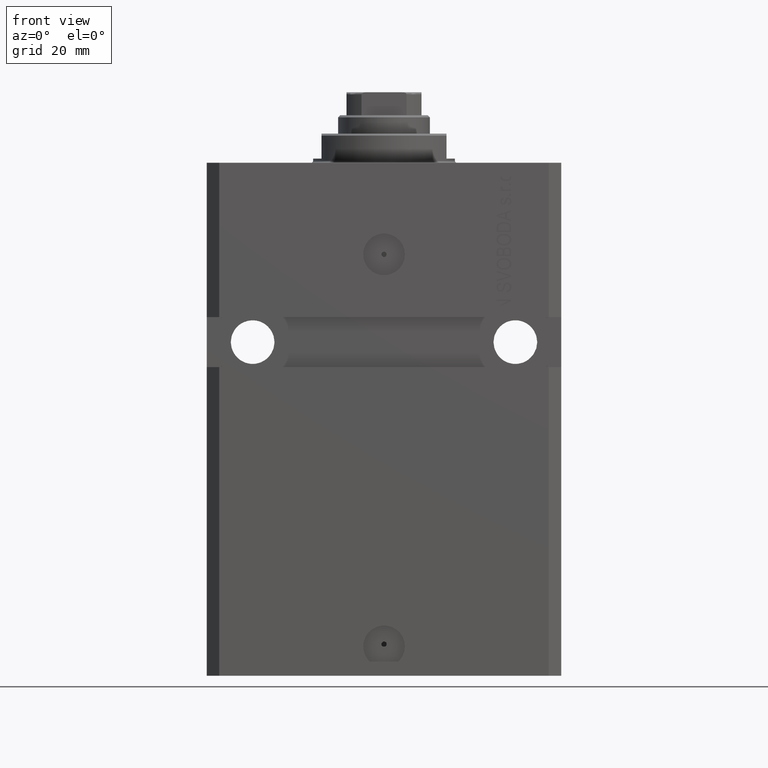
[diagram: clean part render]
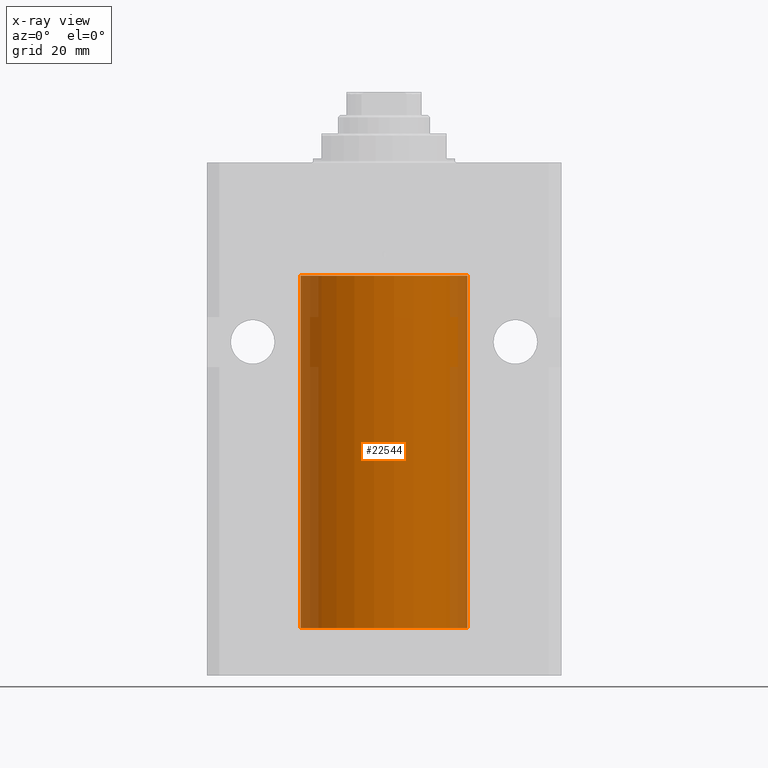
[diagram: x-ray — body ghosted, one internal face saturated and labeled with its STEP entity id]
A machine part, front view, then the same camera in x-ray: the body is ghosted and one INTERNAL B-rep face — a face not visible from any outside direction — is saturated and labeled: STEP entity #22544.
In plain terms, the highlighted cylindrical surface (partial cylindrical patch) has radius 20 mm, axis along (0, 0, 1).
Its self-contained STEP definition (entity closure, byte-faithful):
#311 = CARTESIAN_POINT ( 'NONE',  ( -20.00000000000000000, 2.449293598294706513E-15, -111.6000000000000085 ) ) ;
#615 = DIRECTION ( 'NONE',  ( 1.000000000000000000, 0.000000000000000000, 0.000000000000000000 ) ) ;
#895 = DIRECTION ( 'NONE',  ( 0.000000000000000000, 0.000000000000000000, 1.000000000000000000 ) ) ;
#911 = CARTESIAN_POINT ( 'NONE',  ( -20.00000000000010303, 3.580159290815452135E-13, -109.6250000000033253 ) ) ;
#1118 = DIRECTION ( 'NONE',  ( 1.000000000000000000, 0.000000000000000000, 0.000000000000000000 ) ) ;
#1964 = VERTEX_POINT ( 'NONE', #15828 ) ;
#4299 = AXIS2_PLACEMENT_3D ( 'NONE', #17403, #23972, #615 ) ;
#4361 = LINE ( 'NONE', #311, #25070 ) ;
#6125 = AXIS2_PLACEMENT_3D ( 'NONE', #41903, #895, #1118 ) ;
#6650 = EDGE_CURVE ( 'NONE', #1964, #34171, #4361, .T. ) ;
#7963 = EDGE_CURVE ( 'NONE', #34171, #33980, #39436, .T. ) ;
#9265 = ORIENTED_EDGE ( 'NONE', *, *, #24204, .T. ) ;
#10295 = CARTESIAN_POINT ( 'NONE',  ( 20.00000000000000000, 0.000000000000000000, -111.6000000000000085 ) ) ;
#10496 = DIRECTION ( 'NONE',  ( -0.000000000000000000, -0.000000000000000000, 1.000000000000000000 ) ) ;
#12935 = CARTESIAN_POINT ( 'NONE',  ( -20.00000000000000000, 2.449293598294706513E-15, -111.6000000000000085 ) ) ;
#14167 = VERTEX_POINT ( 'NONE', #10295 ) ;
#14286 = DIRECTION ( 'NONE',  ( 1.000000000000000000, 0.000000000000000000, 0.000000000000000000 ) ) ;
#14900 = CARTESIAN_POINT ( 'NONE',  ( -20.00000000000000355, -0.1631318982819179308, -109.6250000000001279 ) ) ;
#15828 = CARTESIAN_POINT ( 'NONE',  ( -20.00000000000000000, -1.494965790691426527E-14, -108.3750000000000000 ) ) ;
#17092 = LINE ( 'NONE', #30895, #39435 ) ;
#17403 = CARTESIAN_POINT ( 'NONE',  ( 0.000000000000000000, 0.000000000000000000, -111.6000000000000085 ) ) ;
#19641 = CARTESIAN_POINT ( 'NONE',  ( -20.00000000000000000, -0.1651542110816476838, -108.3750000000000142 ) ) ;
#20406 = EDGE_CURVE ( 'NONE', #42357, #1964, #42678, .T. ) ;
#20497 = CIRCLE ( 'NONE', #26267, 20.00000000000000000 ) ;
#21398 = DIRECTION ( 'NONE',  ( -0.000000000000000000, -0.000000000000000000, 1.000000000000000000 ) ) ;
#21702 = CARTESIAN_POINT ( 'NONE',  ( -19.99767054355995555, -0.3263099029014887020, -109.5574110824076541 ) ) ;
#21932 = CARTESIAN_POINT ( 'NONE',  ( -19.99022768983530440, -0.6251375268966076204, -108.8356630308822162 ) ) ;
#22544 = ADVANCED_FACE ( 'NONE', ( #34152 ), #44809, .F. ) ;
#22593 = CARTESIAN_POINT ( 'NONE',  ( -19.99765984516762174, -0.3269569594424159842, -108.4429100894329991 ) ) ;
#23972 = DIRECTION ( 'NONE',  ( -0.000000000000000000, -0.000000000000000000, 1.000000000000000000 ) ) ;
#24204 = EDGE_CURVE ( 'NONE', #31781, #42357, #43073, .T. ) ;
#24532 = ORIENTED_EDGE ( 'NONE', *, *, #43263, .F. ) ;
#25070 = VECTOR ( 'NONE', #21398, 1000.000000000000000 ) ;
#25112 = CARTESIAN_POINT ( 'NONE',  ( -20.00000000000010303, 3.580159290815452135E-13, -109.6250000000033253 ) ) ;
#26267 = AXIS2_PLACEMENT_3D ( 'NONE', #31023, #41669, #14286 ) ;
#26323 = DIRECTION ( 'NONE',  ( -0.000000000000000000, -0.000000000000000000, 1.000000000000000000 ) ) ;
#29379 = CARTESIAN_POINT ( 'NONE',  ( -20.00000000000000000, -1.494965790691426527E-14, -108.3750000000000000 ) ) ;
#30459 = ORIENTED_EDGE ( 'NONE', *, *, #6650, .T. ) ;
#30895 = CARTESIAN_POINT ( 'NONE',  ( 20.00000000000000000, 0.000000000000000000, -111.6000000000000085 ) ) ;
#31023 = CARTESIAN_POINT ( 'NONE',  ( 0.000000000000000000, 0.000000000000000000, -111.6000000000000085 ) ) ;
#31781 = VERTEX_POINT ( 'NONE', #38837 ) ;
#33980 = VERTEX_POINT ( 'NONE', #43278 ) ;
#34152 = FACE_OUTER_BOUND ( 'NONE', #37757, .T. ) ;
#34171 = VERTEX_POINT ( 'NONE', #43956 ) ;
#34205 = EDGE_CURVE ( 'NONE', #31781, #14167, #20497, .T. ) ;
#35503 = ORIENTED_EDGE ( 'NONE', *, *, #7963, .T. ) ;
#35514 = VECTOR ( 'NONE', #26323, 1000.000000000000000 ) ;
#35515 = CARTESIAN_POINT ( 'NONE',  ( -19.99257639367449357, -0.5569510432580383474, -109.3270944862517098 ) ) ;
#35736 = CARTESIAN_POINT ( 'NONE',  ( -19.99255948581289033, -0.5575529953197871924, -108.6738333567126631 ) ) ;
#37757 = EDGE_LOOP ( 'NONE', ( #42650, #9265, #38686, #30459, #35503, #24532 ) ) ;
#38686 = ORIENTED_EDGE ( 'NONE', *, *, #20406, .T. ) ;
#38837 = CARTESIAN_POINT ( 'NONE',  ( -20.00000000000000000, 2.449293598294706513E-15, -111.6000000000000085 ) ) ;
#39436 = CIRCLE ( 'NONE', #6125, 20.00000000000000000 ) ;
#39435 = VECTOR ( 'NONE', #10496, 1000.000000000000000 ) ;
#41669 = DIRECTION ( 'NONE',  ( 0.000000000000000000, 0.000000000000000000, 1.000000000000000000 ) ) ;
#41903 = CARTESIAN_POINT ( 'NONE',  ( 0.000000000000000000, 0.000000000000000000, -27.10000000000000142 ) ) ;
#42357 = VERTEX_POINT ( 'NONE', #911 ) ;
#42519 = CARTESIAN_POINT ( 'NONE',  ( -19.99023630310506761, -0.6248620367829642586, -109.1653813832953404 ) ) ;
#42650 = ORIENTED_EDGE ( 'NONE', *, *, #34205, .F. ) ;
#42678 = B_SPLINE_CURVE_WITH_KNOTS ( 'NONE', 3,
 ( #25112, #14900, #21702, #35515, #42519, #21932, #35736, #22593, #19641, #29379 ),
 .UNSPECIFIED., .F., .F.,
 ( 4, 2, 2, 2, 4 ),
 ( 0.001954154509844217673, 0.002442582466643778739, 0.002931010423443339372, 0.003419438380242900005, 0.003907866337042461072 ),
 .UNSPECIFIED. ) ;
#43073 = LINE ( 'NONE', #12935, #35514 ) ;
#43263 = EDGE_CURVE ( 'NONE', #14167, #33980, #17092, .T. ) ;
#43278 = CARTESIAN_POINT ( 'NONE',  ( 20.00000000000000000, 0.000000000000000000, -27.10000000000000142 ) ) ;
#43956 = CARTESIAN_POINT ( 'NONE',  ( -20.00000000000000000, 2.449293598294706513E-15, -27.10000000000000142 ) ) ;
#44809 = CYLINDRICAL_SURFACE ( 'NONE', #4299, 20.00000000000000000 ) ;